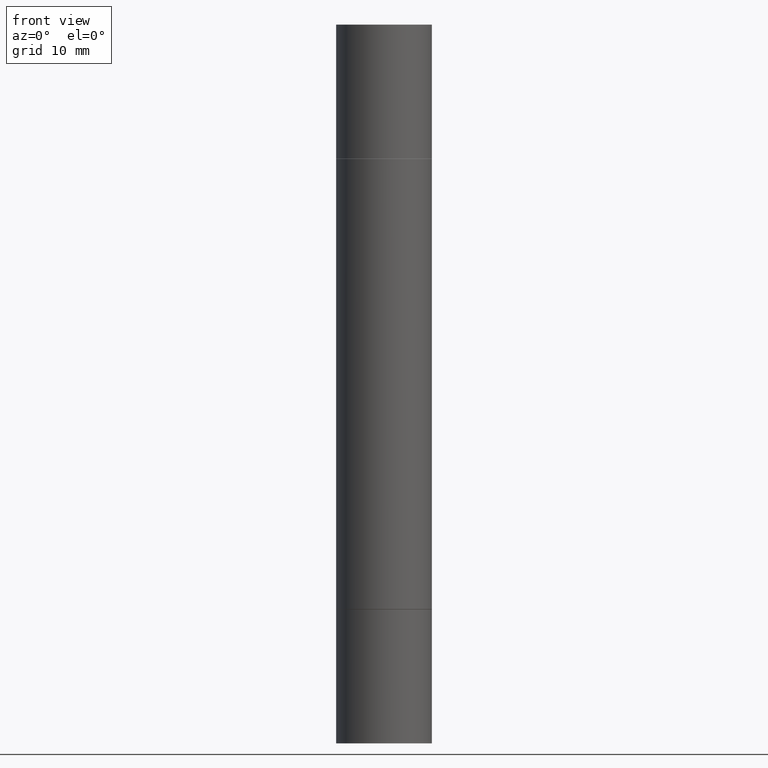
[diagram: clean part render]
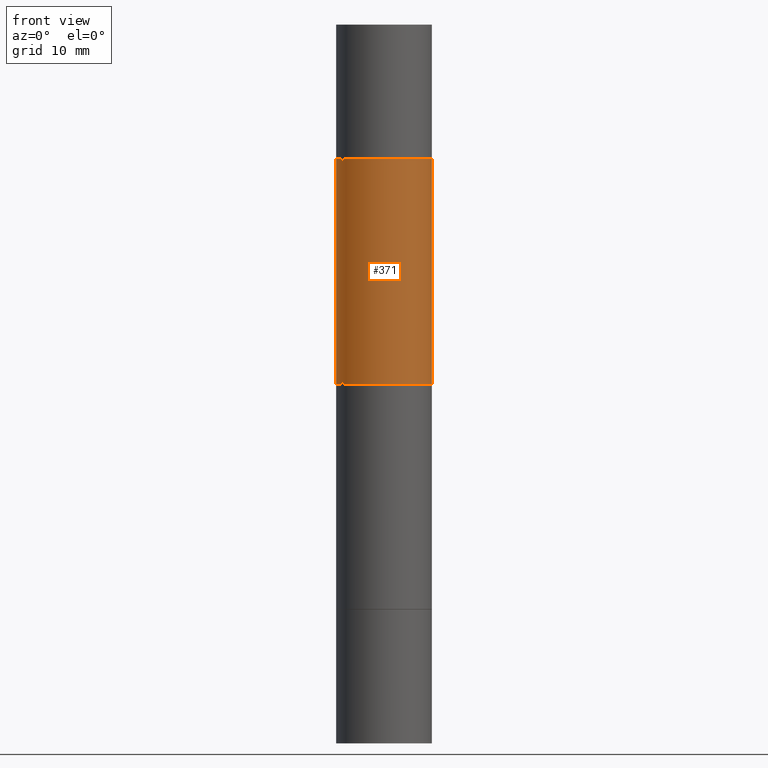
[diagram: same view with one face highlighted and labeled with its STEP entity id]
A machine part, front view. The second image highlights one B-rep face of the part: STEP entity #371.
In plain terms, the highlighted cylindrical surface (partial cylindrical patch) has radius 5 mm, axis along (-0, -0, -1).
Its self-contained STEP definition (entity closure, byte-faithful):
#21 = VERTEX_POINT ( 'NONE', #608 ) ;
#22 = AXIS2_PLACEMENT_3D ( 'NONE', #323, #536, #217 ) ;
#65 = FACE_OUTER_BOUND ( 'NONE', #356, .T. ) ;
#95 = CARTESIAN_POINT ( 'NONE',  ( -0.1968499999999998307, -8.961237421421701017E-15, -2.952799999999998981 ) ) ;
#97 = ORIENTED_EDGE ( 'NONE', *, *, #139, .T. ) ;
#116 = VERTEX_POINT ( 'NONE', #206 ) ;
#118 = DIRECTION ( 'NONE',  ( 0.000000000000000000, 1.000000000000000000, -4.163344669033678790E-15 ) ) ;
#139 = EDGE_CURVE ( 'NONE', #116, #271, #257, .T. ) ;
#175 = CARTESIAN_POINT ( 'NONE',  ( -0.1968499999999998307, -2.190269358628626559E-15, -1.476399999999999491 ) ) ;
#177 = CYLINDRICAL_SURFACE ( 'NONE', #22, 0.1968499999999998307 ) ;
#182 = DIRECTION ( 'NONE',  ( -2.445468806185136877E-29, -3.492890411551753071E-15, -1.000000000000000000 ) ) ;
#206 = CARTESIAN_POINT ( 'NONE',  ( -0.1968500000000000250, -5.762046994505618475E-16, -0.5521999999999996911 ) ) ;
#217 = DIRECTION ( 'NONE',  ( 1.000000000000000000, -6.982962677686264344E-15, 0.000000000000000000 ) ) ;
#228 = LINE ( 'NONE', #444, #456 ) ;
#230 = CIRCLE ( 'NONE', #467, 0.1968499999999998307 ) ;
#250 = VERTEX_POINT ( 'NONE', #647 ) ;
#257 = LINE ( 'NONE', #95, #499 ) ;
#262 = ORIENTED_EDGE ( 'NONE', *, *, #488, .F. ) ;
#271 = VERTEX_POINT ( 'NONE', #175 ) ;
#312 = CIRCLE ( 'NONE', #625, 0.1968500000000000250 ) ;
#323 = CARTESIAN_POINT ( 'NONE',  ( 0.000000000000000000, -1.031172645228302408E-14, -2.952799999999998981 ) ) ;
#356 = EDGE_LOOP ( 'NONE', ( #589, #97, #585, #262 ) ) ;
#360 = DIRECTION ( 'NONE',  ( -2.445468806185136877E-29, -3.492890411551753071E-15, -1.000000000000000000 ) ) ;
#371 = ADVANCED_FACE ( 'NONE', ( #65 ), #177, .T. ) ;
#394 = DIRECTION ( 'NONE',  ( 2.445468806185136597E-29, 3.492890411551752677E-15, 1.000000000000000000 ) ) ;
#407 = EDGE_CURVE ( 'NONE', #116, #21, #312, .T. ) ;
#444 = CARTESIAN_POINT ( 'NONE',  ( 0.1968499999999998307, -1.168632265538556411E-14, -2.952799999999998981 ) ) ;
#454 = DIRECTION ( 'NONE',  ( 1.000000000000000000, -6.982962677686267499E-15, 0.000000000000000000 ) ) ;
#456 = VECTOR ( 'NONE', #182, 39.37007874015748143 ) ;
#467 = AXIS2_PLACEMENT_3D ( 'NONE', #535, #481, #118 ) ;
#481 = DIRECTION ( 'NONE',  ( -0.000000000000000000, -3.492185875197449130E-15, -1.000000000000000000 ) ) ;
#488 = EDGE_CURVE ( 'NONE', #21, #250, #228, .T. ) ;
#499 = VECTOR ( 'NONE', #360, 39.37007874015748143 ) ;
#535 = CARTESIAN_POINT ( 'NONE',  ( 3.610490145451734531E-29, -5.154823048668018475E-15, -1.476399999999999491 ) ) ;
#536 = DIRECTION ( 'NONE',  ( -2.445468806185136597E-29, -3.492890411551752677E-15, -1.000000000000000000 ) ) ;
#562 = EDGE_CURVE ( 'NONE', #250, #271, #230, .T. ) ;
#564 = CARTESIAN_POINT ( 'NONE',  ( 5.870592416128037625E-29, -1.926693730311889446E-15, -0.5521999999999996911 ) ) ;
#585 = ORIENTED_EDGE ( 'NONE', *, *, #562, .F. ) ;
#589 = ORIENTED_EDGE ( 'NONE', *, *, #407, .F. ) ;
#608 = CARTESIAN_POINT ( 'NONE',  ( 0.1968500000000000250, -3.301289933414429871E-15, -0.5521999999999996911 ) ) ;
#625 = AXIS2_PLACEMENT_3D ( 'NONE', #564, #394, #454 ) ;
#647 = CARTESIAN_POINT ( 'NONE',  ( 0.1968499999999998307, -4.915354592592491624E-15, -1.476399999999999491 ) ) ;